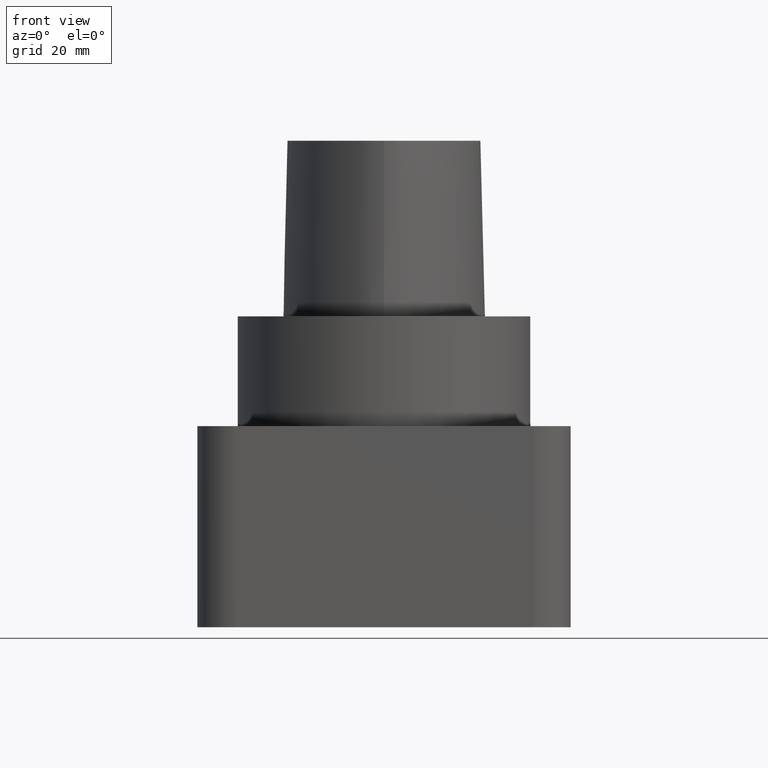
[diagram: clean part render]
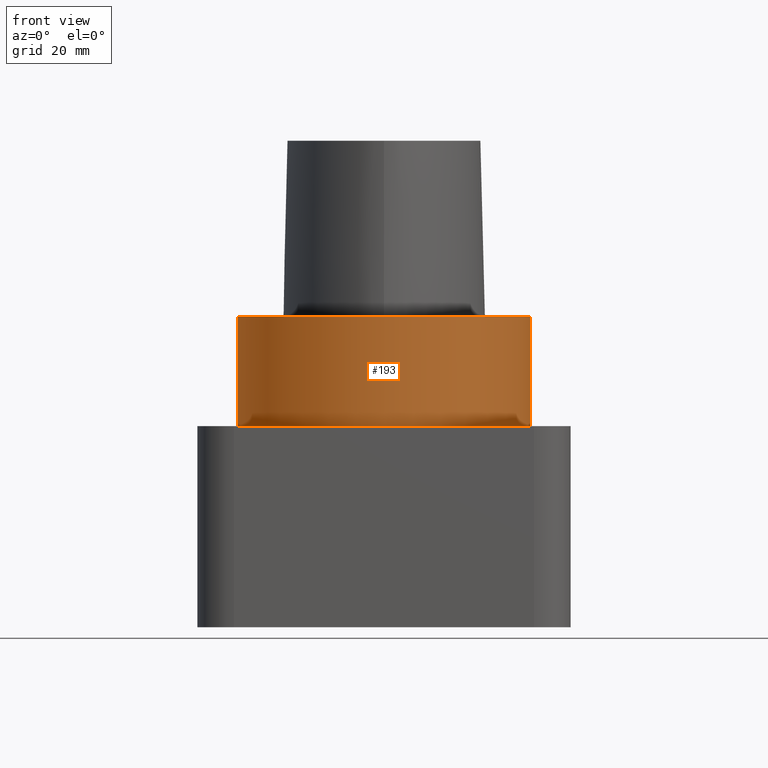
[diagram: same view with one face highlighted and labeled with its STEP entity id]
A machine part, front view. The second image highlights one B-rep face of the part: STEP entity #193.
In plain terms, the highlighted cylindrical surface (bore or boss wall) has radius 39.9925 mm, axis along (0, 0, -1).
Its self-contained STEP definition (entity closure, byte-faithful):
#125=EDGE_CURVE('240[2]',#293,#293,#294,.T.);
#193=ADVANCED_FACE('240[2]',(#381,#382),#383,.T.);
#200=EDGE_CURVE('240[2]',#391,#391,#392,.T.);
#293=VERTEX_POINT('',#549);
#294=CIRCLE('',#550,39.9925);
#381=FACE_BOUND('',#1162,.T.);
#382=FACE_BOUND('',#1163,.T.);
#383=CYLINDRICAL_SURFACE('',#1164,39.9925);
#391=VERTEX_POINT('',#1176);
#392=CIRCLE('',#1177,39.9925);
#549=CARTESIAN_POINT('',(39.9925,-1.5666566925062E-014,-30.0));
#550=AXIS2_PLACEMENT_3D('',#1280,#1281,#1282);
#1162=EDGE_LOOP('',(#1367));
#1163=EDGE_LOOP('',(#1368));
#1164=AXIS2_PLACEMENT_3D('',#1369,#1370,#1371);
#1176=CARTESIAN_POINT('',(39.9925,-1.44519304248361E-014,0.0));
#1177=AXIS2_PLACEMENT_3D('',#1381,#1382,#1383);
#1280=CARTESIAN_POINT('',(1.04682009057955E-014,-1.54254912154279E-014,-30.0));
#1281=DIRECTION('',(1.23505709193311E-016,-6.12323399573677E-017,-1.0));
#1282=DIRECTION('',(1.0,-6.02802299516348E-018,1.23505709193311E-016));
#1367=ORIENTED_EDGE('',*,*,#200,.T.);
#1368=ORIENTED_EDGE('',*,*,#125,.F.);
#1369=CARTESIAN_POINT('',(-1.39839777023226E-015,-7.45502680015907E-015,-1.4210854715202E-014));
#1370=DIRECTION('',(4.93096088451183E-016,5.47630258703118E-017,-1.0));
#1371=DIRECTION('',(1.0,-8.20219220013608E-017,4.93096088451183E-016));
#1381=CARTESIAN_POINT('',(0.0,0.0,0.0));
#1382=DIRECTION('',(1.23505709193311E-016,-6.12323399573677E-017,-1.0));
#1383=DIRECTION('',(-1.0,4.16407813559172E-016,-1.23505709193311E-016));